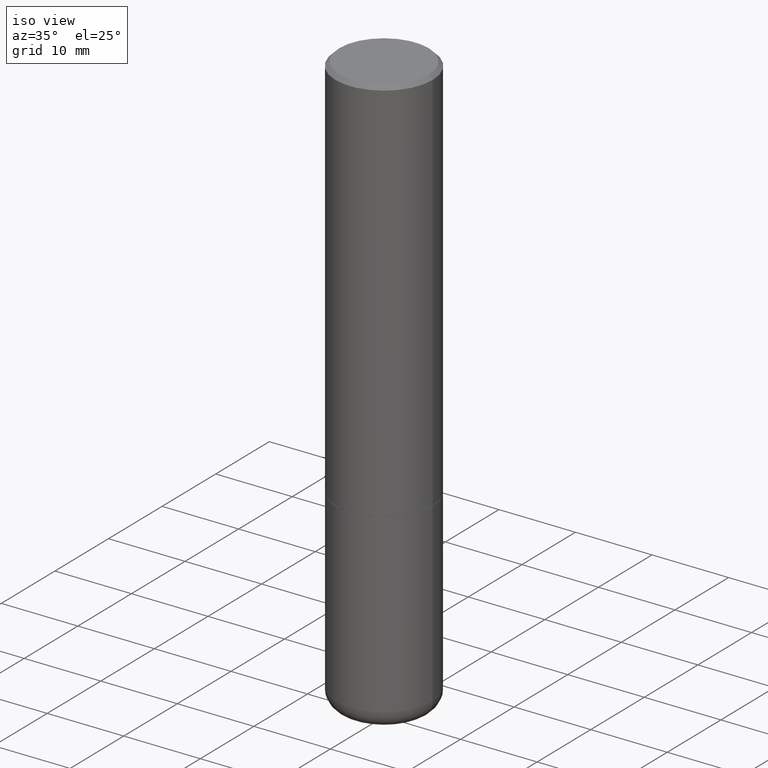
[diagram: clean part render]
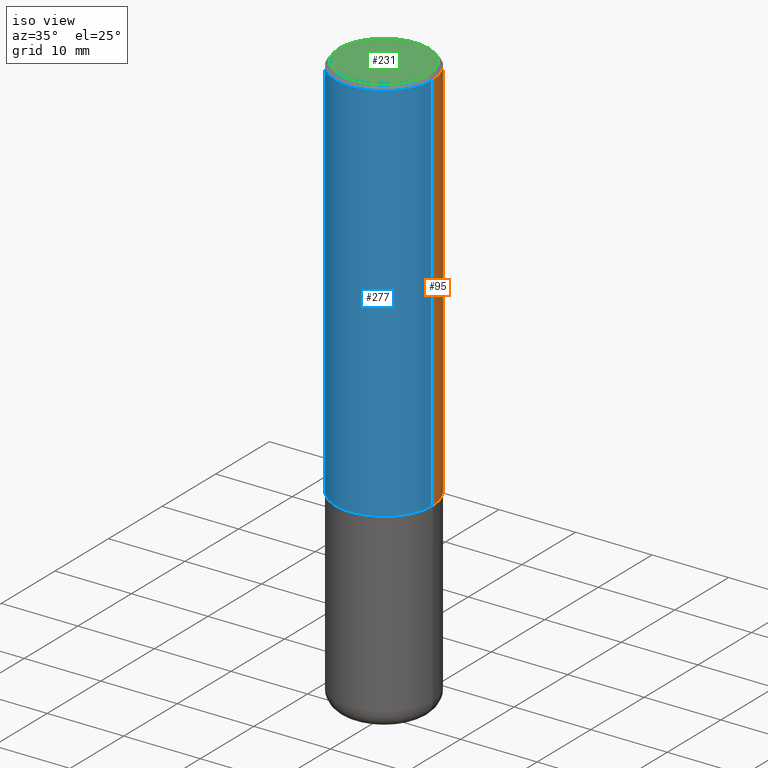
[diagram: same view with three faces highlighted in distinct colors, each labeled with its STEP entity id]
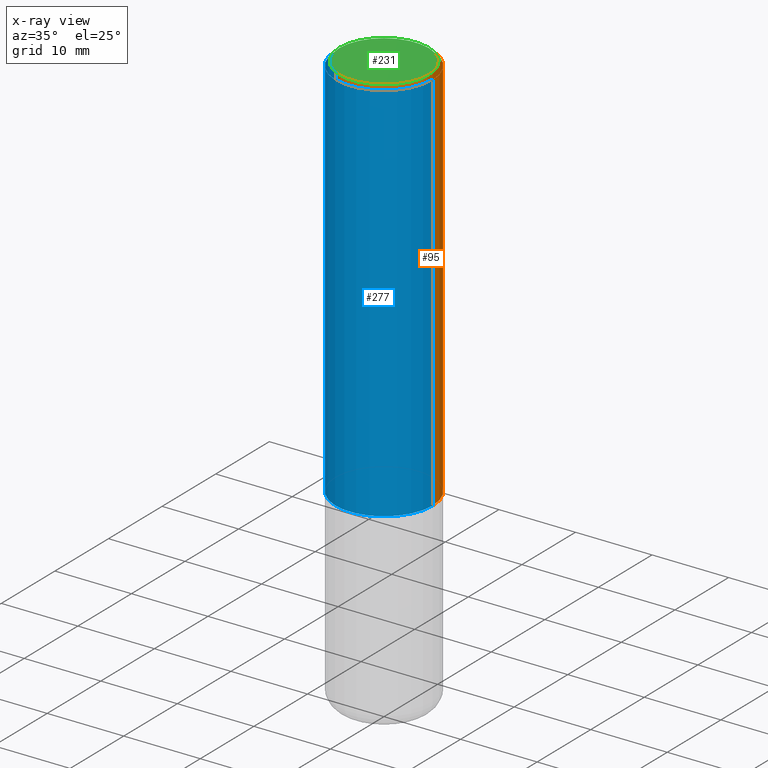
[diagram: x-ray of the same camera — body ghosted, the three highlighted faces saturated]
A machine part, iso view with three faces highlighted in distinct colors.
The next image is the same camera in x-ray (body ghosted, the three faces saturated) — at least one of them is partly hidden behind the body in this view.
Their STEP definitions:

[orange] entity #95 — the highlighted cylindrical surface (partial cylindrical patch) has radius 6.35 mm, axis along (-0, 0, 1).
#4 = EDGE_CURVE ( 'NONE', #299, #172, #190, .T. ) ;
#14 = EDGE_CURVE ( 'NONE', #172, #52, #207, .T. ) ;
#27 = CARTESIAN_POINT ( 'NONE',  ( -0.2500000000000002220, -1.748293572161903489E-15, -1.999000000000000110 ) ) ;
#36 = CARTESIAN_POINT ( 'NONE',  ( 0.2500000000000002220, -8.725211865769017202E-15, -1.999000000000000110 ) ) ;
#45 = VERTEX_POINT ( 'NONE', #27 ) ;
#49 = EDGE_CURVE ( 'NONE', #299, #45, #182, .T. ) ;
#52 = VERTEX_POINT ( 'NONE', #246 ) ;
#56 = DIRECTION ( 'NONE',  ( 1.000000000000000000, -6.982962677686268288E-15, 0.000000000000000000 ) ) ;
#58 = CARTESIAN_POINT ( 'NONE',  ( 0.2500000000000001110, -1.745740669421567467E-15, 1.219044193948984509E-29 ) ) ;
#92 = CARTESIAN_POINT ( 'NONE',  ( 0.000000000000000000, 0.000000000000000000, 0.000000000000000000 ) ) ;
#94 = CYLINDRICAL_SURFACE ( 'NONE', #336, 0.2500000000000001110 ) ;
#95 = ADVANCED_FACE ( 'NONE', ( #413 ), #94, .T. ) ;
#120 = ORIENTED_EDGE ( 'NONE', *, *, #341, .T. ) ;
#132 = DIRECTION ( 'NONE',  ( 1.000000000000000000, -6.982962677686266711E-15, 4.876176775795935793E-29 ) ) ;
#142 = AXIS2_PLACEMENT_3D ( 'NONE', #343, #157, #319 ) ;
#150 = DIRECTION ( 'NONE',  ( -2.445468806185136877E-29, 3.491481338843145188E-15, 1.000000000000000000 ) ) ;
#157 = DIRECTION ( 'NONE',  ( -2.445468806185136597E-29, 3.491481338843145583E-15, 1.000000000000000000 ) ) ;
#172 = VERTEX_POINT ( 'NONE', #409 ) ;
#178 = ORIENTED_EDGE ( 'NONE', *, *, #4, .F. ) ;
#182 = CIRCLE ( 'NONE', #194, 0.2500000000000002220 ) ;
#190 = LINE ( 'NONE', #58, #327 ) ;
#194 = AXIS2_PLACEMENT_3D ( 'NONE', #375, #284, #56 ) ;
#207 = CIRCLE ( 'NONE', #142, 0.2499999999999999722 ) ;
#217 = DIRECTION ( 'NONE',  ( -2.445468806185136597E-29, 3.491481338843145583E-15, 1.000000000000000000 ) ) ;
#246 = CARTESIAN_POINT ( 'NONE',  ( -0.2499999999999999722, 1.675911042644703182E-15, -0.02000000000000009409 ) ) ;
#280 = VECTOR ( 'NONE', #150, 39.37007874015748143 ) ;
#284 = DIRECTION ( 'NONE',  ( -2.445468806185136597E-29, 3.491481338843145583E-15, 1.000000000000000000 ) ) ;
#287 = LINE ( 'NONE', #418, #280 ) ;
#293 = ORIENTED_EDGE ( 'NONE', *, *, #14, .F. ) ;
#299 = VERTEX_POINT ( 'NONE', #36 ) ;
#319 = DIRECTION ( 'NONE',  ( 1.000000000000000000, -6.982962677686266711E-15, 0.000000000000000000 ) ) ;
#327 = VECTOR ( 'NONE', #408, 39.37007874015748143 ) ;
#336 = AXIS2_PLACEMENT_3D ( 'NONE', #92, #217, #132 ) ;
#341 = EDGE_CURVE ( 'NONE', #45, #52, #287, .T. ) ;
#343 = CARTESIAN_POINT ( 'NONE',  ( 4.890937612370296805E-31, -6.982962677686323656E-17, -0.02000000000000009409 ) ) ;
#370 = ORIENTED_EDGE ( 'NONE', *, *, #49, .T. ) ;
#375 = CARTESIAN_POINT ( 'NONE',  ( 4.888492143564088712E-29, -6.979471196347448158E-15, -1.999000000000000110 ) ) ;
#401 = EDGE_LOOP ( 'NONE', ( #370, #120, #293, #178 ) ) ;
#408 = DIRECTION ( 'NONE',  ( -2.445468806185136877E-29, 3.491481338843145188E-15, 1.000000000000000000 ) ) ;
#409 = CARTESIAN_POINT ( 'NONE',  ( 0.2499999999999999722, -1.784954126219746189E-15, -0.02000000000000009409 ) ) ;
#413 = FACE_OUTER_BOUND ( 'NONE', #401, .T. ) ;
#418 = CARTESIAN_POINT ( 'NONE',  ( -0.2500000000000001110, 1.776356839400251254E-15, -1.229733772563727006E-29 ) ) ;

[blue] entity #277 — the highlighted cylindrical surface (partial cylindrical patch) has radius 6.35 mm, axis along (-0, 0, 1).
#4 = EDGE_CURVE ( 'NONE', #299, #172, #190, .T. ) ;
#27 = CARTESIAN_POINT ( 'NONE',  ( -0.2500000000000002220, -1.748293572161903489E-15, -1.999000000000000110 ) ) ;
#36 = CARTESIAN_POINT ( 'NONE',  ( 0.2500000000000002220, -8.725211865769017202E-15, -1.999000000000000110 ) ) ;
#39 = EDGE_LOOP ( 'NONE', ( #140, #109, #307, #69 ) ) ;
#45 = VERTEX_POINT ( 'NONE', #27 ) ;
#52 = VERTEX_POINT ( 'NONE', #246 ) ;
#58 = CARTESIAN_POINT ( 'NONE',  ( 0.2500000000000001110, -1.745740669421567467E-15, 1.219044193948984509E-29 ) ) ;
#69 = ORIENTED_EDGE ( 'NONE', *, *, #84, .F. ) ;
#84 = EDGE_CURVE ( 'NONE', #52, #172, #126, .T. ) ;
#88 = AXIS2_PLACEMENT_3D ( 'NONE', #404, #366, #331 ) ;
#102 = CYLINDRICAL_SURFACE ( 'NONE', #405, 0.2500000000000001110 ) ;
#109 = ORIENTED_EDGE ( 'NONE', *, *, #397, .T. ) ;
#126 = CIRCLE ( 'NONE', #302, 0.2499999999999999722 ) ;
#128 = DIRECTION ( 'NONE',  ( 1.000000000000000000, -6.982962677686266711E-15, 0.000000000000000000 ) ) ;
#140 = ORIENTED_EDGE ( 'NONE', *, *, #341, .F. ) ;
#144 = DIRECTION ( 'NONE',  ( -2.445468806185136597E-29, 3.491481338843145583E-15, 1.000000000000000000 ) ) ;
#150 = DIRECTION ( 'NONE',  ( -2.445468806185136877E-29, 3.491481338843145188E-15, 1.000000000000000000 ) ) ;
#161 = CIRCLE ( 'NONE', #88, 0.2500000000000002220 ) ;
#163 = DIRECTION ( 'NONE',  ( -2.445468806185136597E-29, 3.491481338843145583E-15, 1.000000000000000000 ) ) ;
#172 = VERTEX_POINT ( 'NONE', #409 ) ;
#190 = LINE ( 'NONE', #58, #327 ) ;
#224 = CARTESIAN_POINT ( 'NONE',  ( 0.000000000000000000, 0.000000000000000000, 0.000000000000000000 ) ) ;
#246 = CARTESIAN_POINT ( 'NONE',  ( -0.2499999999999999722, 1.675911042644703182E-15, -0.02000000000000009409 ) ) ;
#277 = ADVANCED_FACE ( 'NONE', ( #353 ), #102, .T. ) ;
#279 = CARTESIAN_POINT ( 'NONE',  ( 4.890937612370296805E-31, -6.982962677686323656E-17, -0.02000000000000009409 ) ) ;
#280 = VECTOR ( 'NONE', #150, 39.37007874015748143 ) ;
#287 = LINE ( 'NONE', #418, #280 ) ;
#289 = DIRECTION ( 'NONE',  ( 1.000000000000000000, -6.982962677686266711E-15, 4.876176775795935793E-29 ) ) ;
#299 = VERTEX_POINT ( 'NONE', #36 ) ;
#302 = AXIS2_PLACEMENT_3D ( 'NONE', #279, #163, #128 ) ;
#307 = ORIENTED_EDGE ( 'NONE', *, *, #4, .T. ) ;
#327 = VECTOR ( 'NONE', #408, 39.37007874015748143 ) ;
#331 = DIRECTION ( 'NONE',  ( 1.000000000000000000, -6.982962677686268288E-15, 0.000000000000000000 ) ) ;
#341 = EDGE_CURVE ( 'NONE', #45, #52, #287, .T. ) ;
#353 = FACE_OUTER_BOUND ( 'NONE', #39, .T. ) ;
#366 = DIRECTION ( 'NONE',  ( -2.445468806185136597E-29, 3.491481338843145583E-15, 1.000000000000000000 ) ) ;
#397 = EDGE_CURVE ( 'NONE', #45, #299, #161, .T. ) ;
#404 = CARTESIAN_POINT ( 'NONE',  ( 4.888492143564088712E-29, -6.979471196347448158E-15, -1.999000000000000110 ) ) ;
#405 = AXIS2_PLACEMENT_3D ( 'NONE', #224, #144, #289 ) ;
#408 = DIRECTION ( 'NONE',  ( -2.445468806185136877E-29, 3.491481338843145188E-15, 1.000000000000000000 ) ) ;
#409 = CARTESIAN_POINT ( 'NONE',  ( 0.2499999999999999722, -1.784954126219746189E-15, -0.02000000000000009409 ) ) ;
#418 = CARTESIAN_POINT ( 'NONE',  ( -0.2500000000000001110, 1.776356839400251254E-15, -1.229733772563727006E-29 ) ) ;

[green] entity #231 — the highlighted planar face has unit normal (0, -0, -1).
#5 = FACE_OUTER_BOUND ( 'NONE', #71, .T. ) ;
#6 = ORIENTED_EDGE ( 'NONE', *, *, #245, .T. ) ;
#31 = CARTESIAN_POINT ( 'NONE',  ( -0.2299999999999995381, 1.640996229256271139E-15, 4.268512490100296524E-16 ) ) ;
#68 = DIRECTION ( 'NONE',  ( -2.445468806185136597E-29, 3.491481338843145583E-15, 1.000000000000000000 ) ) ;
#71 = EDGE_LOOP ( 'NONE', ( #6, #229 ) ) ;
#110 = CARTESIAN_POINT ( 'NONE',  ( 0.2299999999999995381, -1.681434332853596842E-15, 4.268512490100525294E-16 ) ) ;
#174 = CARTESIAN_POINT ( 'NONE',  ( -1.043851414335219407E-44, 1.490343170380446839E-30, 4.268512490100409923E-16 ) ) ;
#187 = VERTEX_POINT ( 'NONE', #31 ) ;
#188 = CIRCLE ( 'NONE', #328, 0.2299999999999995381 ) ;
#198 = DIRECTION ( 'NONE',  ( 1.000000000000000000, -6.982962677686266711E-15, 4.879110437680785527E-29 ) ) ;
#200 = DIRECTION ( 'NONE',  ( 2.438088387897960049E-29, -3.491481338843145188E-15, -1.000000000000000000 ) ) ;
#215 = CIRCLE ( 'NONE', #318, 0.2299999999999995381 ) ;
#223 = VERTEX_POINT ( 'NONE', #110 ) ;
#227 = DIRECTION ( 'NONE',  ( -1.000000000000000000, 6.982962677686265922E-15, -4.876176775795935793E-29 ) ) ;
#229 = ORIENTED_EDGE ( 'NONE', *, *, #308, .T. ) ;
#231 = ADVANCED_FACE ( 'NONE', ( #5 ), #253, .F. ) ;
#245 = EDGE_CURVE ( 'NONE', #187, #223, #188, .T. ) ;
#253 = PLANE ( 'NONE',  #286 ) ;
#286 = AXIS2_PLACEMENT_3D ( 'NONE', #416, #200, #227 ) ;
#295 = CARTESIAN_POINT ( 'NONE',  ( -1.043851414335219407E-44, 1.490343170380446839E-30, 4.268512490100409923E-16 ) ) ;
#308 = EDGE_CURVE ( 'NONE', #223, #187, #215, .T. ) ;
#318 = AXIS2_PLACEMENT_3D ( 'NONE', #174, #361, #198 ) ;
#328 = AXIS2_PLACEMENT_3D ( 'NONE', #295, #68, #359 ) ;
#359 = DIRECTION ( 'NONE',  ( 1.000000000000000000, -6.982962677686266711E-15, 4.879110437680785527E-29 ) ) ;
#361 = DIRECTION ( 'NONE',  ( -2.445468806185136597E-29, 3.491481338843145583E-15, 1.000000000000000000 ) ) ;
#416 = CARTESIAN_POINT ( 'NONE',  ( 1.606081415867837912E-15, 0.2299999999999995381, -5.896150834289013687E-16 ) ) ;